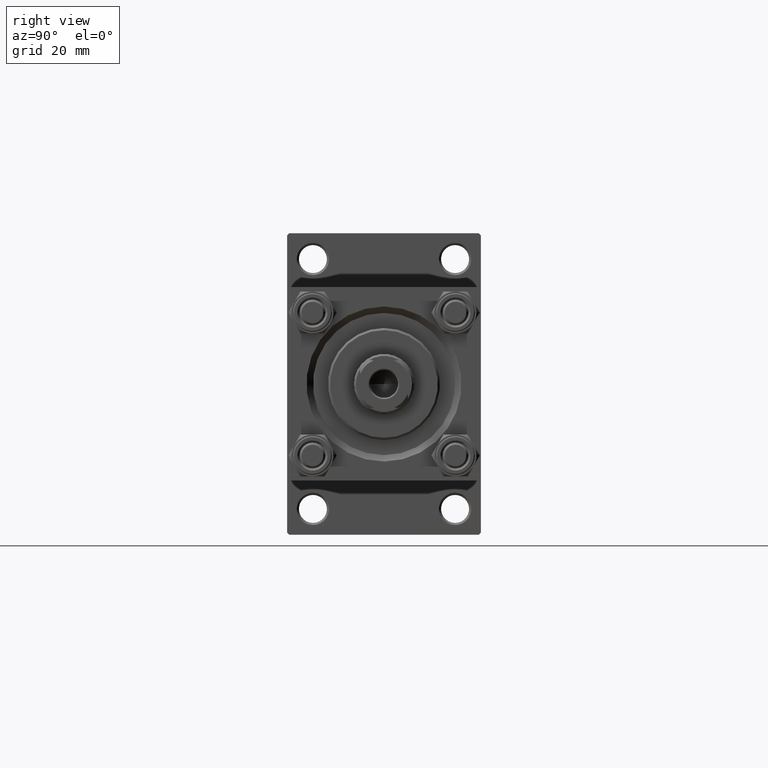
[diagram: clean part render]
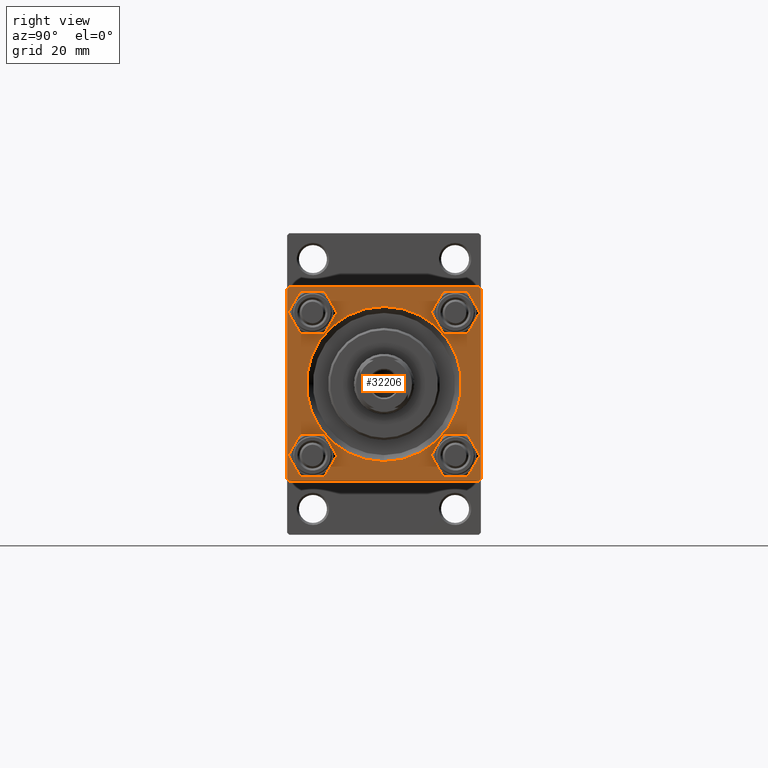
[diagram: same view with one face highlighted and labeled with its STEP entity id]
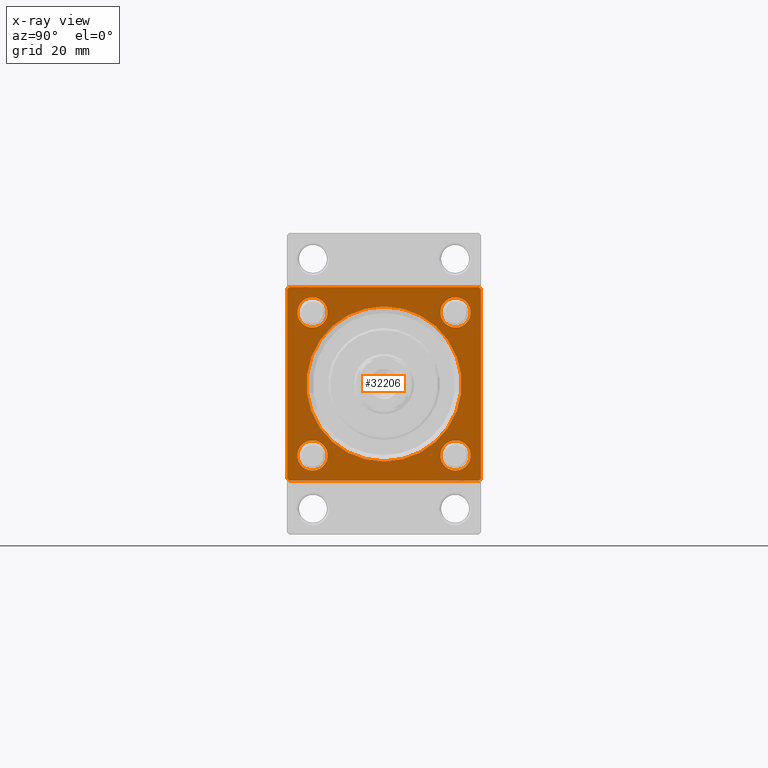
[diagram: x-ray of the same camera — body ghosted, the highlighted face saturated]
A machine part, right view. The second image highlights one B-rep face of the part: STEP entity #32206.
The next image is the same camera in x-ray: the body ghosted, the highlighted face saturated — about 0% of this face is hidden behind the body in this view.
In plain terms, the highlighted planar face has unit normal (-1, 0, 0).
Its self-contained STEP definition (entity closure, byte-faithful):
#734 = DIRECTION ( 'NONE',  ( -1.000000000000000000, 0.000000000000000000, -0.000000000000000000 ) ) ;
#877 = CARTESIAN_POINT ( 'NONE',  ( 123.0000000000000142, -16.59999999999999076, 13.10000000000000320 ) ) ;
#1038 = CARTESIAN_POINT ( 'NONE',  ( 123.0000000000000142, -21.99999999999999645, -22.50000000000000000 ) ) ;
#1281 = AXIS2_PLACEMENT_3D ( 'NONE', #20221, #28300, #27798 ) ;
#1303 = FACE_BOUND ( 'NONE', #27215, .T. ) ;
#1422 = CIRCLE ( 'NONE', #16725, 3.500000000000003109 ) ;
#1572 = VERTEX_POINT ( 'NONE', #27297 ) ;
#1662 = ORIENTED_EDGE ( 'NONE', *, *, #43353, .T. ) ;
#2175 = EDGE_CURVE ( 'NONE', #37028, #33278, #10738, .T. ) ;
#2330 = CARTESIAN_POINT ( 'NONE',  ( 123.0000000000000142, 0.000000000000000000, 0.000000000000000000 ) ) ;
#2960 = ORIENTED_EDGE ( 'NONE', *, *, #39207, .T. ) ;
#3287 = EDGE_CURVE ( 'NONE', #36500, #10272, #9990, .T. ) ;
#3534 = ORIENTED_EDGE ( 'NONE', *, *, #43020, .T. ) ;
#3614 = CARTESIAN_POINT ( 'NONE',  ( 123.0000000000000142, 16.59999999999999787, -16.60000000000000497 ) ) ;
#4101 = ORIENTED_EDGE ( 'NONE', *, *, #26531, .T. ) ;
#4179 = DIRECTION ( 'NONE',  ( 0.000000000000000000, 0.000000000000000000, -1.000000000000000000 ) ) ;
#4275 = EDGE_LOOP ( 'NONE', ( #14157, #1662, #45019, #2960, #16173, #41223, #5320, #13510 ) ) ;
#5094 = FACE_BOUND ( 'NONE', #34008, .T. ) ;
#5138 = AXIS2_PLACEMENT_3D ( 'NONE', #8886, #9123, #24260 ) ;
#5159 = CARTESIAN_POINT ( 'NONE',  ( 123.0000000000000142, -16.59999999999999076, -16.60000000000000853 ) ) ;
#5320 = ORIENTED_EDGE ( 'NONE', *, *, #25957, .T. ) ;
#5623 = VECTOR ( 'NONE', #48906, 1000.000000000000000 ) ;
#5886 = DIRECTION ( 'NONE',  ( 0.000000000000000000, 0.000000000000000000, 1.000000000000000000 ) ) ;
#5995 = CARTESIAN_POINT ( 'NONE',  ( 123.0000000000000142, 22.50000000000000355, -21.99999999999996803 ) ) ;
#6195 = CARTESIAN_POINT ( 'NONE',  ( 123.0000000000000142, -16.59999999999999076, -20.10000000000000853 ) ) ;
#6456 = LINE ( 'NONE', #10735, #5623 ) ;
#6591 = VERTEX_POINT ( 'NONE', #44627 ) ;
#8132 = VERTEX_POINT ( 'NONE', #35188 ) ;
#8396 = EDGE_CURVE ( 'NONE', #33607, #6591, #29501, .T. ) ;
#8417 = VERTEX_POINT ( 'NONE', #48739 ) ;
#8638 = FACE_OUTER_BOUND ( 'NONE', #4275, .T. ) ;
#8886 = CARTESIAN_POINT ( 'NONE',  ( 123.0000000000000142, 16.59999999999999787, -16.60000000000000497 ) ) ;
#9123 = DIRECTION ( 'NONE',  ( -1.000000000000000000, 0.000000000000000000, -0.000000000000000000 ) ) ;
#9128 = PLANE ( 'NONE',  #1281 ) ;
#9340 = VECTOR ( 'NONE', #4179, 1000.000000000000000 ) ;
#9428 = DIRECTION ( 'NONE',  ( -1.000000000000000000, 0.000000000000000000, -0.000000000000000000 ) ) ;
#9957 = CIRCLE ( 'NONE', #38993, 3.500000000000003109 ) ;
#9990 = CIRCLE ( 'NONE', #5138, 3.500000000000003109 ) ;
#10137 = CARTESIAN_POINT ( 'NONE',  ( 123.0000000000000142, 22.50000000000000355, -22.49999999999999645 ) ) ;
#10272 = VERTEX_POINT ( 'NONE', #24442 ) ;
#10735 = CARTESIAN_POINT ( 'NONE',  ( 123.0000000000000142, -22.49999999999999645, 22.49999999999999289 ) ) ;
#10738 = CIRCLE ( 'NONE', #30876, 3.500000000000003109 ) ;
#10801 = DIRECTION ( 'NONE',  ( 0.000000000000000000, -0.7071067811865378028, 0.7071067811865573427 ) ) ;
#11072 = VERTEX_POINT ( 'NONE', #27048 ) ;
#11148 = CARTESIAN_POINT ( 'NONE',  ( 123.0000000000000142, 0.000000000000000000, 0.000000000000000000 ) ) ;
#11912 = FACE_BOUND ( 'NONE', #22343, .T. ) ;
#12476 = EDGE_CURVE ( 'NONE', #32231, #28209, #25141, .T. ) ;
#12665 = FACE_BOUND ( 'NONE', #26645, .T. ) ;
#12767 = CIRCLE ( 'NONE', #40994, 3.500000000000003109 ) ;
#12889 = LINE ( 'NONE', #43721, #44898 ) ;
#13510 = ORIENTED_EDGE ( 'NONE', *, *, #42903, .T. ) ;
#13544 = CIRCLE ( 'NONE', #24826, 3.500000000000003109 ) ;
#13618 = EDGE_CURVE ( 'NONE', #32231, #8417, #45415, .T. ) ;
#13750 = ORIENTED_EDGE ( 'NONE', *, *, #42725, .T. ) ;
#14157 = ORIENTED_EDGE ( 'NONE', *, *, #21971, .T. ) ;
#14607 = DIRECTION ( 'NONE',  ( -1.000000000000000000, 0.000000000000000000, -0.000000000000000000 ) ) ;
#15406 = LINE ( 'NONE', #1038, #40213 ) ;
#15863 = DIRECTION ( 'NONE',  ( 0.000000000000000000, 0.000000000000000000, 1.000000000000000000 ) ) ;
#16173 = ORIENTED_EDGE ( 'NONE', *, *, #12476, .F. ) ;
#16202 = ORIENTED_EDGE ( 'NONE', *, *, #47705, .T. ) ;
#16231 = ORIENTED_EDGE ( 'NONE', *, *, #3287, .T. ) ;
#16423 = CARTESIAN_POINT ( 'NONE',  ( 123.0000000000000142, 16.59999999999999787, 20.10000000000000853 ) ) ;
#16725 = AXIS2_PLACEMENT_3D ( 'NONE', #27978, #734, #15863 ) ;
#16897 = DIRECTION ( 'NONE',  ( 0.000000000000000000, 0.000000000000000000, 1.000000000000000000 ) ) ;
#16970 = AXIS2_PLACEMENT_3D ( 'NONE', #40976, #9428, #25797 ) ;
#16977 = DIRECTION ( 'NONE',  ( -1.000000000000000000, 0.000000000000000000, -0.000000000000000000 ) ) ;
#18238 = CARTESIAN_POINT ( 'NONE',  ( 123.0000000000000142, 16.59999999999999787, 13.10000000000000142 ) ) ;
#18250 = DIRECTION ( 'NONE',  ( -0.000000000000000000, -0.7071067811865474617, -0.7071067811865474617 ) ) ;
#18448 = DIRECTION ( 'NONE',  ( 0.000000000000000000, 0.000000000000000000, 1.000000000000000000 ) ) ;
#19139 = CARTESIAN_POINT ( 'NONE',  ( 123.0000000000000142, -16.59999999999999076, -13.10000000000000320 ) ) ;
#19707 = CARTESIAN_POINT ( 'NONE',  ( 123.0000000000000142, 22.50000000000000355, 21.99999999999996092 ) ) ;
#20084 = VERTEX_POINT ( 'NONE', #18238 ) ;
#20200 = DIRECTION ( 'NONE',  ( 0.000000000000000000, 0.7071067811865425767, -0.7071067811865525687 ) ) ;
#20221 = CARTESIAN_POINT ( 'NONE',  ( 123.0000000000000142, 0.000000000000000000, 0.000000000000000000 ) ) ;
#21055 = DIRECTION ( 'NONE',  ( 0.000000000000000000, 0.000000000000000000, 1.000000000000000000 ) ) ;
#21358 = EDGE_LOOP ( 'NONE', ( #39248, #3534 ) ) ;
#21669 = CARTESIAN_POINT ( 'NONE',  ( 123.0000000000000142, -22.49999999999999645, -21.99999999999997868 ) ) ;
#21919 = DIRECTION ( 'NONE',  ( 0.000000000000000000, 0.000000000000000000, 1.000000000000000000 ) ) ;
#21971 = EDGE_CURVE ( 'NONE', #8132, #36071, #6456, .T. ) ;
#21981 = DIRECTION ( 'NONE',  ( -1.000000000000000000, 0.000000000000000000, -0.000000000000000000 ) ) ;
#22343 = EDGE_LOOP ( 'NONE', ( #13750, #39257 ) ) ;
#24228 = CIRCLE ( 'NONE', #16970, 3.500000000000003109 ) ;
#24260 = DIRECTION ( 'NONE',  ( 0.000000000000000000, 0.000000000000000000, 1.000000000000000000 ) ) ;
#24442 = CARTESIAN_POINT ( 'NONE',  ( 123.0000000000000142, 16.59999999999999787, -13.10000000000000142 ) ) ;
#24486 = DIRECTION ( 'NONE',  ( -0.000000000000000000, 0.7071067811865474617, 0.7071067811865474617 ) ) ;
#24826 = AXIS2_PLACEMENT_3D ( 'NONE', #3614, #26819, #29625 ) ;
#25141 = LINE ( 'NONE', #38777, #9340 ) ;
#25797 = DIRECTION ( 'NONE',  ( 0.000000000000000000, 0.000000000000000000, 1.000000000000000000 ) ) ;
#25957 = EDGE_CURVE ( 'NONE', #8417, #28472, #28871, .T. ) ;
#26531 = EDGE_CURVE ( 'NONE', #6591, #33607, #9957, .T. ) ;
#26645 = EDGE_LOOP ( 'NONE', ( #29156, #4101 ) ) ;
#26819 = DIRECTION ( 'NONE',  ( -1.000000000000000000, 0.000000000000000000, -0.000000000000000000 ) ) ;
#27048 = CARTESIAN_POINT ( 'NONE',  ( 123.0000000000000142, 2.204364238465235822E-15, 18.00000000000000355 ) ) ;
#27215 = EDGE_LOOP ( 'NONE', ( #37898, #16202 ) ) ;
#27297 = CARTESIAN_POINT ( 'NONE',  ( 123.0000000000000142, 21.99999999999998934, -22.49999999999999645 ) ) ;
#27798 = DIRECTION ( 'NONE',  ( -0.000000000000000000, 0.000000000000000000, 1.000000000000000000 ) ) ;
#27978 = CARTESIAN_POINT ( 'NONE',  ( 123.0000000000000142, 16.59999999999999787, 16.60000000000000497 ) ) ;
#28209 = VERTEX_POINT ( 'NONE', #5995 ) ;
#28300 = DIRECTION ( 'NONE',  ( -1.000000000000000000, 0.000000000000000000, -0.000000000000000000 ) ) ;
#28341 = DIRECTION ( 'NONE',  ( 0.000000000000000000, 0.000000000000000000, 1.000000000000000000 ) ) ;
#28472 = VERTEX_POINT ( 'NONE', #43853 ) ;
#28871 = LINE ( 'NONE', #44800, #42194 ) ;
#29080 = ORIENTED_EDGE ( 'NONE', *, *, #42085, .T. ) ;
#29156 = ORIENTED_EDGE ( 'NONE', *, *, #8396, .T. ) ;
#29375 = CARTESIAN_POINT ( 'NONE',  ( 123.0000000000000142, -16.59999999999999076, -16.60000000000000853 ) ) ;
#29501 = CIRCLE ( 'NONE', #46455, 3.500000000000003109 ) ;
#29625 = DIRECTION ( 'NONE',  ( 0.000000000000000000, 0.000000000000000000, 1.000000000000000000 ) ) ;
#29720 = AXIS2_PLACEMENT_3D ( 'NONE', #2330, #16977, #28341 ) ;
#30376 = CARTESIAN_POINT ( 'NONE',  ( 123.0000000000000142, -22.49999999999999645, 21.99999999999997868 ) ) ;
#30480 = VECTOR ( 'NONE', #44510, 1000.000000000000000 ) ;
#30876 = AXIS2_PLACEMENT_3D ( 'NONE', #5159, #40491, #5886 ) ;
#30968 = VERTEX_POINT ( 'NONE', #41518 ) ;
#31030 = VERTEX_POINT ( 'NONE', #16423 ) ;
#31645 = CARTESIAN_POINT ( 'NONE',  ( 123.0000000000000142, 16.59999999999999787, -20.10000000000000853 ) ) ;
#32206 = ADVANCED_FACE ( 'NONE', ( #11912, #5094, #1303, #12665, #42738, #8638 ), #9128, .F. ) ;
#32231 = VERTEX_POINT ( 'NONE', #19707 ) ;
#32864 = LINE ( 'NONE', #10137, #30480 ) ;
#33278 = VERTEX_POINT ( 'NONE', #6195 ) ;
#33607 = VERTEX_POINT ( 'NONE', #877 ) ;
#33726 = VECTOR ( 'NONE', #18250, 1000.000000000000114 ) ;
#34008 = EDGE_LOOP ( 'NONE', ( #16231, #29080 ) ) ;
#34026 = CARTESIAN_POINT ( 'NONE',  ( 123.0000000000000142, 21.99999999999997513, 22.50000000000000355 ) ) ;
#34679 = LINE ( 'NONE', #30376, #33726 ) ;
#35188 = CARTESIAN_POINT ( 'NONE',  ( 123.0000000000000142, -22.49999999999999645, 21.99999999999997868 ) ) ;
#35225 = VECTOR ( 'NONE', #10801, 1000.000000000000000 ) ;
#36071 = VERTEX_POINT ( 'NONE', #21669 ) ;
#36500 = VERTEX_POINT ( 'NONE', #31645 ) ;
#36776 = EDGE_CURVE ( 'NONE', #30968, #11072, #39209, .T. ) ;
#37028 = VERTEX_POINT ( 'NONE', #19139 ) ;
#37898 = ORIENTED_EDGE ( 'NONE', *, *, #40221, .T. ) ;
#38777 = CARTESIAN_POINT ( 'NONE',  ( 123.0000000000000142, 22.50000000000000355, 22.50000000000000355 ) ) ;
#38993 = AXIS2_PLACEMENT_3D ( 'NONE', #47992, #39901, #16897 ) ;
#39207 = EDGE_CURVE ( 'NONE', #1572, #28209, #12889, .T. ) ;
#39209 = CIRCLE ( 'NONE', #40817, 18.00000000000000355 ) ;
#39248 = ORIENTED_EDGE ( 'NONE', *, *, #36776, .T. ) ;
#39257 = ORIENTED_EDGE ( 'NONE', *, *, #2175, .T. ) ;
#39901 = DIRECTION ( 'NONE',  ( -1.000000000000000000, 0.000000000000000000, -0.000000000000000000 ) ) ;
#40213 = VECTOR ( 'NONE', #20200, 999.9999999999998863 ) ;
#40221 = EDGE_CURVE ( 'NONE', #20084, #31030, #1422, .T. ) ;
#40491 = DIRECTION ( 'NONE',  ( -1.000000000000000000, 0.000000000000000000, -0.000000000000000000 ) ) ;
#40817 = AXIS2_PLACEMENT_3D ( 'NONE', #11148, #21981, #18448 ) ;
#40976 = CARTESIAN_POINT ( 'NONE',  ( 123.0000000000000142, 16.59999999999999787, 16.60000000000000497 ) ) ;
#40994 = AXIS2_PLACEMENT_3D ( 'NONE', #29375, #44813, #21055 ) ;
#41020 = CIRCLE ( 'NONE', #29720, 18.00000000000000355 ) ;
#41223 = ORIENTED_EDGE ( 'NONE', *, *, #13618, .T. ) ;
#41518 = CARTESIAN_POINT ( 'NONE',  ( 123.0000000000000142, 0.000000000000000000, -18.00000000000000355 ) ) ;
#41540 = CARTESIAN_POINT ( 'NONE',  ( 123.0000000000000142, -21.99999999999998224, -22.50000000000000000 ) ) ;
#42085 = EDGE_CURVE ( 'NONE', #10272, #36500, #13544, .T. ) ;
#42194 = VECTOR ( 'NONE', #44312, 1000.000000000000000 ) ;
#42268 = EDGE_CURVE ( 'NONE', #1572, #48569, #32864, .T. ) ;
#42725 = EDGE_CURVE ( 'NONE', #33278, #37028, #12767, .T. ) ;
#42738 = FACE_BOUND ( 'NONE', #21358, .T. ) ;
#42903 = EDGE_CURVE ( 'NONE', #28472, #8132, #34679, .T. ) ;
#43020 = EDGE_CURVE ( 'NONE', #11072, #30968, #41020, .T. ) ;
#43353 = EDGE_CURVE ( 'NONE', #36071, #48569, #15406, .T. ) ;
#43721 = CARTESIAN_POINT ( 'NONE',  ( 123.0000000000000142, 22.50000000000000355, -21.99999999999998224 ) ) ;
#43853 = CARTESIAN_POINT ( 'NONE',  ( 123.0000000000000142, -21.99999999999996803, 22.49999999999999289 ) ) ;
#44312 = DIRECTION ( 'NONE',  ( 0.000000000000000000, -1.000000000000000000, -2.312964634635742957E-16 ) ) ;
#44510 = DIRECTION ( 'NONE',  ( 0.000000000000000000, -1.000000000000000000, -7.709882115452476934E-17 ) ) ;
#44627 = CARTESIAN_POINT ( 'NONE',  ( 123.0000000000000142, -16.59999999999999076, 20.10000000000000853 ) ) ;
#44800 = CARTESIAN_POINT ( 'NONE',  ( 123.0000000000000142, 22.50000000000000355, 22.50000000000000355 ) ) ;
#44813 = DIRECTION ( 'NONE',  ( -1.000000000000000000, 0.000000000000000000, -0.000000000000000000 ) ) ;
#44898 = VECTOR ( 'NONE', #24486, 1000.000000000000114 ) ;
#45019 = ORIENTED_EDGE ( 'NONE', *, *, #42268, .F. ) ;
#45415 = LINE ( 'NONE', #34026, #35225 ) ;
#45949 = CARTESIAN_POINT ( 'NONE',  ( 123.0000000000000142, -16.59999999999999076, 16.60000000000000853 ) ) ;
#46455 = AXIS2_PLACEMENT_3D ( 'NONE', #45949, #14607, #21919 ) ;
#47705 = EDGE_CURVE ( 'NONE', #31030, #20084, #24228, .T. ) ;
#47992 = CARTESIAN_POINT ( 'NONE',  ( 123.0000000000000142, -16.59999999999999076, 16.60000000000000853 ) ) ;
#48569 = VERTEX_POINT ( 'NONE', #41540 ) ;
#48739 = CARTESIAN_POINT ( 'NONE',  ( 123.0000000000000142, 21.99999999999997513, 22.50000000000000355 ) ) ;
#48906 = DIRECTION ( 'NONE',  ( 0.000000000000000000, 0.000000000000000000, -1.000000000000000000 ) ) ;